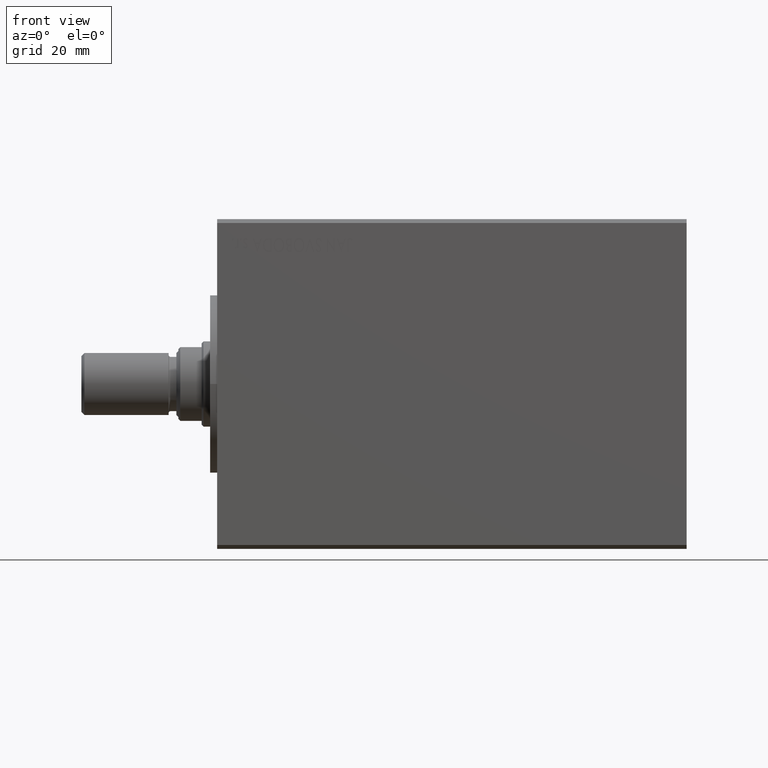
[diagram: clean part render]
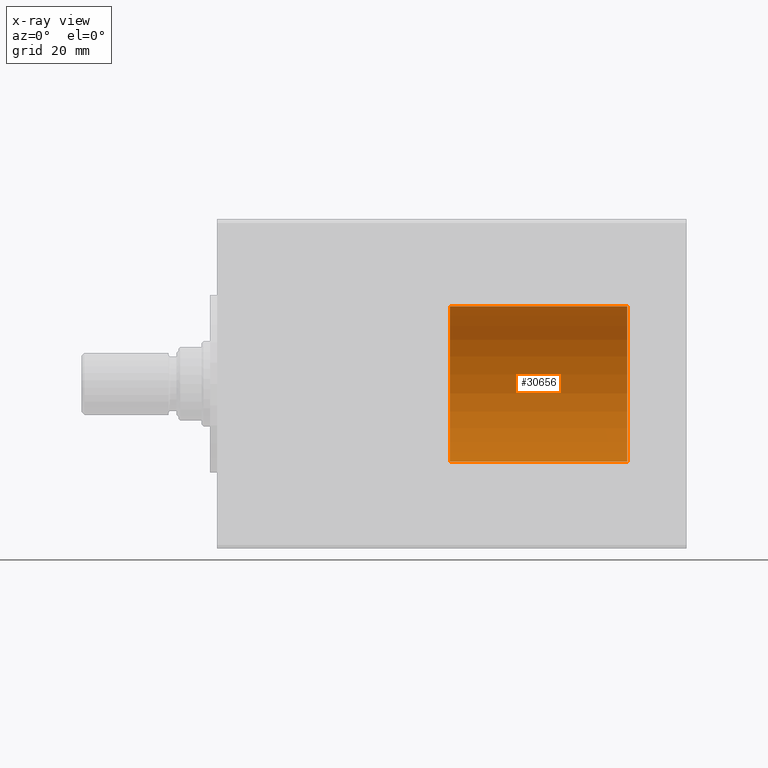
[diagram: x-ray — body ghosted, one internal face saturated and labeled with its STEP entity id]
A machine part, front view, then the same camera in x-ray: the body is ghosted and one INTERNAL B-rep face — a face not visible from any outside direction — is saturated and labeled: STEP entity #30656.
In plain terms, the highlighted cylindrical surface (partial cylindrical patch) has radius 20 mm, axis along (1, -0, -0).
Its self-contained STEP definition (entity closure, byte-faithful):
#1799 = VERTEX_POINT ( 'NONE', #8573 ) ;
#1963 = DIRECTION ( 'NONE',  ( 0.000000000000000000, 0.000000000000000000, 1.000000000000000000 ) ) ;
#2575 = EDGE_CURVE ( 'NONE', #41318, #1799, #41910, .T. ) ;
#3231 = ORIENTED_EDGE ( 'NONE', *, *, #2575, .T. ) ;
#3873 = VECTOR ( 'NONE', #30407, 1000.000000000000000 ) ;
#5710 = DIRECTION ( 'NONE',  ( 0.000000000000000000, 0.000000000000000000, 1.000000000000000000 ) ) ;
#7221 = EDGE_LOOP ( 'NONE', ( #15302, #22695, #3231, #42058 ) ) ;
#8573 = CARTESIAN_POINT ( 'NONE',  ( -20.00000000000000000, 0.000000000000000000, 0.000000000000000000 ) ) ;
#9595 = VERTEX_POINT ( 'NONE', #17673 ) ;
#11761 = FACE_OUTER_BOUND ( 'NONE', #7221, .T. ) ;
#12933 = CARTESIAN_POINT ( 'NONE',  ( 20.00000000000000000, 2.449293598294706119E-15, 45.70000000000000284 ) ) ;
#15302 = ORIENTED_EDGE ( 'NONE', *, *, #17071, .F. ) ;
#15860 = DIRECTION ( 'NONE',  ( 1.000000000000000000, 0.000000000000000000, 0.000000000000000000 ) ) ;
#16501 = CARTESIAN_POINT ( 'NONE',  ( -20.00000000000000000, 0.000000000000000000, 45.70000000000000284 ) ) ;
#17071 = EDGE_CURVE ( 'NONE', #24714, #9595, #20656, .T. ) ;
#17673 = CARTESIAN_POINT ( 'NONE',  ( -20.00000000000000000, 0.000000000000000000, 45.70000000000000284 ) ) ;
#20656 = CIRCLE ( 'NONE', #26383, 20.00000000000000000 ) ;
#22193 = CARTESIAN_POINT ( 'NONE',  ( 0.000000000000000000, 0.000000000000000000, 45.70000000000000284 ) ) ;
#22483 = CARTESIAN_POINT ( 'NONE',  ( 20.00000000000000000, 2.449293598294706119E-15, 0.000000000000000000 ) ) ;
#22695 = ORIENTED_EDGE ( 'NONE', *, *, #24788, .T. ) ;
#23681 = LINE ( 'NONE', #16501, #3873 ) ;
#24166 = LINE ( 'NONE', #27958, #43071 ) ;
#24714 = VERTEX_POINT ( 'NONE', #12933 ) ;
#24788 = EDGE_CURVE ( 'NONE', #24714, #41318, #24166, .T. ) ;
#25264 = CARTESIAN_POINT ( 'NONE',  ( 0.000000000000000000, 0.000000000000000000, 45.70000000000000284 ) ) ;
#26383 = AXIS2_PLACEMENT_3D ( 'NONE', #22193, #1963, #44368 ) ;
#27059 = CARTESIAN_POINT ( 'NONE',  ( 0.000000000000000000, 0.000000000000000000, 0.000000000000000000 ) ) ;
#27958 = CARTESIAN_POINT ( 'NONE',  ( 20.00000000000000000, 2.449293598294706119E-15, 45.70000000000000284 ) ) ;
#30407 = DIRECTION ( 'NONE',  ( -0.000000000000000000, -0.000000000000000000, -1.000000000000000000 ) ) ;
#30656 = ADVANCED_FACE ( 'NONE', ( #11761 ), #34702, .T. ) ;
#31991 = DIRECTION ( 'NONE',  ( -0.000000000000000000, -0.000000000000000000, -1.000000000000000000 ) ) ;
#34702 = CYLINDRICAL_SURFACE ( 'NONE', #43412, 20.00000000000000000 ) ;
#37605 = AXIS2_PLACEMENT_3D ( 'NONE', #27059, #5710, #15860 ) ;
#37850 = DIRECTION ( 'NONE',  ( -0.000000000000000000, -0.000000000000000000, -1.000000000000000000 ) ) ;
#38944 = DIRECTION ( 'NONE',  ( -1.000000000000000000, 0.000000000000000000, 0.000000000000000000 ) ) ;
#39347 = EDGE_CURVE ( 'NONE', #9595, #1799, #23681, .T. ) ;
#41318 = VERTEX_POINT ( 'NONE', #22483 ) ;
#41910 = CIRCLE ( 'NONE', #37605, 20.00000000000000000 ) ;
#42058 = ORIENTED_EDGE ( 'NONE', *, *, #39347, .F. ) ;
#43071 = VECTOR ( 'NONE', #37850, 1000.000000000000000 ) ;
#43412 = AXIS2_PLACEMENT_3D ( 'NONE', #25264, #31991, #38944 ) ;
#44368 = DIRECTION ( 'NONE',  ( 1.000000000000000000, 0.000000000000000000, 0.000000000000000000 ) ) ;